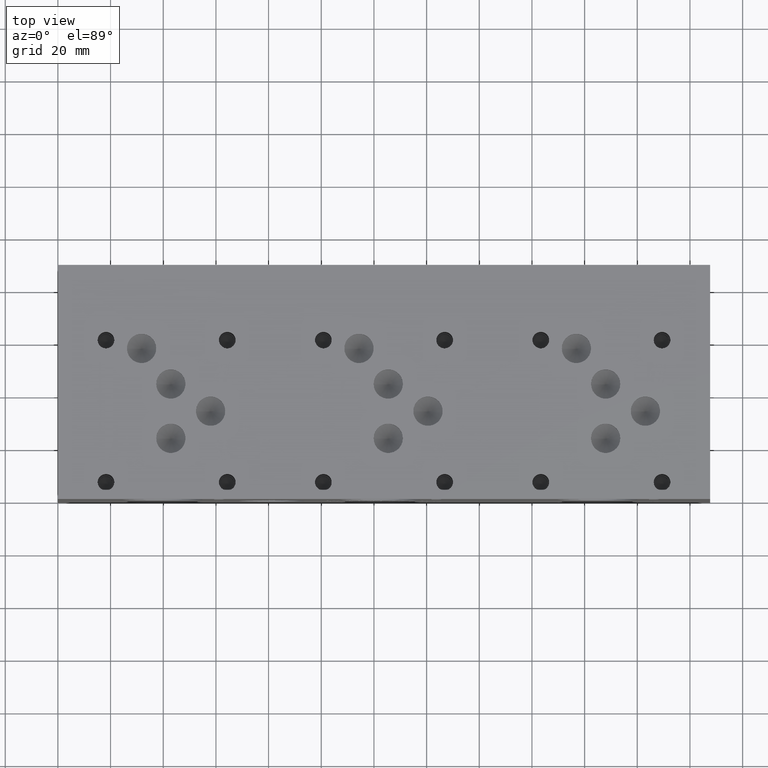
[diagram: clean part render]
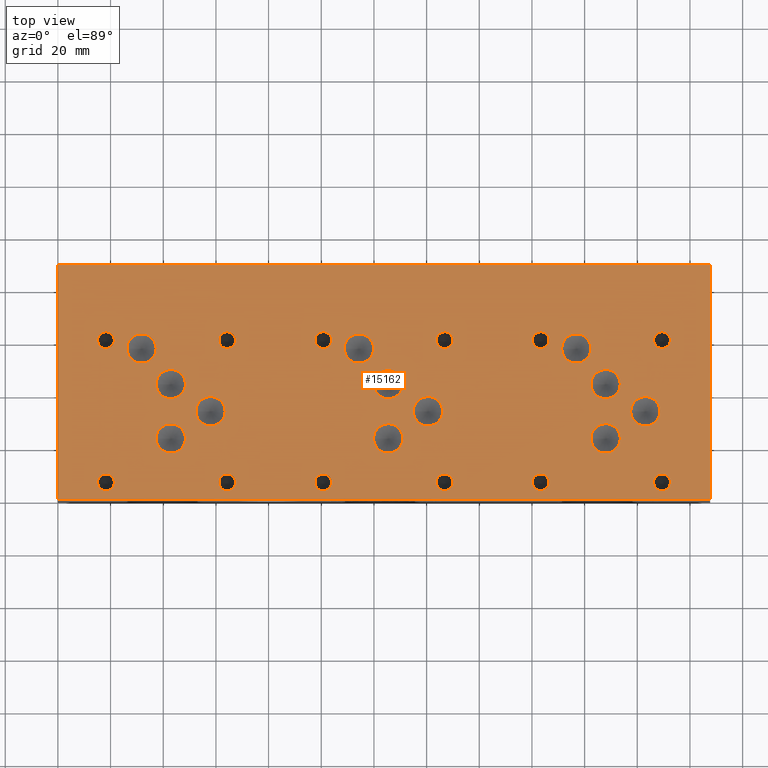
[diagram: same view with one face highlighted and labeled with its STEP entity id]
A machine part, top view. The second image highlights one B-rep face of the part: STEP entity #15162.
In plain terms, the highlighted planar face has unit normal (0, 0, 1).
Its self-contained STEP definition (entity closure, byte-faithful):
#671=CIRCLE('',#15957,3.175);
#672=CIRCLE('',#15958,3.175);
#678=CIRCLE('',#15968,3.175);
#679=CIRCLE('',#15969,3.175);
#685=CIRCLE('',#15979,3.175);
#686=CIRCLE('',#15980,3.175);
#692=CIRCLE('',#15990,3.175);
#693=CIRCLE('',#15991,3.175);
#699=CIRCLE('',#16001,3.175);
#700=CIRCLE('',#16002,3.175);
#706=CIRCLE('',#16012,3.175);
#707=CIRCLE('',#16013,3.175);
#713=CIRCLE('',#16023,3.175);
#714=CIRCLE('',#16024,3.175);
#720=CIRCLE('',#16034,3.175);
#721=CIRCLE('',#16035,3.175);
#724=CIRCLE('',#16041,5.5626);
#725=CIRCLE('',#16042,5.5626);
#728=CIRCLE('',#16047,5.5626);
#729=CIRCLE('',#16048,5.5626);
#732=CIRCLE('',#16053,5.5626);
#733=CIRCLE('',#16054,5.5626);
#736=CIRCLE('',#16059,5.5626);
#737=CIRCLE('',#16060,5.5626);
#740=CIRCLE('',#16065,5.5626);
#741=CIRCLE('',#16066,5.5626);
#744=CIRCLE('',#16071,5.5626);
#745=CIRCLE('',#16072,5.5626);
#748=CIRCLE('',#16077,5.5626);
#749=CIRCLE('',#16078,5.5626);
#752=CIRCLE('',#16083,5.5626);
#753=CIRCLE('',#16084,5.5626);
#756=CIRCLE('',#16089,5.5626);
#757=CIRCLE('',#16090,5.5626);
#760=CIRCLE('',#16095,5.5626);
#761=CIRCLE('',#16096,5.5626);
#764=CIRCLE('',#16101,5.5626);
#765=CIRCLE('',#16102,5.5626);
#768=CIRCLE('',#16107,5.5626);
#769=CIRCLE('',#16108,5.5626);
#775=CIRCLE('',#16117,3.175);
#776=CIRCLE('',#16118,3.175);
#782=CIRCLE('',#16128,3.175);
#783=CIRCLE('',#16129,3.175);
#789=CIRCLE('',#16139,3.175);
#790=CIRCLE('',#16140,3.175);
#796=CIRCLE('',#16150,3.175);
#797=CIRCLE('',#16151,3.175);
#1311=FACE_BOUND('',#3011,.T.);
#1312=FACE_BOUND('',#3012,.T.);
#1313=FACE_BOUND('',#3013,.T.);
#1314=FACE_BOUND('',#3014,.T.);
#1315=FACE_BOUND('',#3015,.T.);
#1316=FACE_BOUND('',#3016,.T.);
#1317=FACE_BOUND('',#3017,.T.);
#1318=FACE_BOUND('',#3018,.T.);
#1319=FACE_BOUND('',#3019,.T.);
#1320=FACE_BOUND('',#3020,.T.);
#1321=FACE_BOUND('',#3021,.T.);
#1322=FACE_BOUND('',#3022,.T.);
#1323=FACE_BOUND('',#3023,.T.);
#1324=FACE_BOUND('',#3024,.T.);
#1325=FACE_BOUND('',#3025,.T.);
#1326=FACE_BOUND('',#3026,.T.);
#1327=FACE_BOUND('',#3027,.T.);
#1328=FACE_BOUND('',#3028,.T.);
#1329=FACE_BOUND('',#3029,.T.);
#1330=FACE_BOUND('',#3030,.T.);
#1331=FACE_BOUND('',#3031,.T.);
#1332=FACE_BOUND('',#3032,.T.);
#1333=FACE_BOUND('',#3033,.T.);
#1334=FACE_BOUND('',#3034,.T.);
#2118=FACE_OUTER_BOUND('',#3010,.T.);
#3010=EDGE_LOOP('',(#13384,#13385,#13386,#13387));
#3011=EDGE_LOOP('',(#13388,#13389));
#3012=EDGE_LOOP('',(#13390,#13391));
#3013=EDGE_LOOP('',(#13392,#13393));
#3014=EDGE_LOOP('',(#13394,#13395));
#3015=EDGE_LOOP('',(#13396,#13397));
#3016=EDGE_LOOP('',(#13398,#13399));
#3017=EDGE_LOOP('',(#13400,#13401));
#3018=EDGE_LOOP('',(#13402,#13403));
#3019=EDGE_LOOP('',(#13404,#13405));
#3020=EDGE_LOOP('',(#13406,#13407));
#3021=EDGE_LOOP('',(#13408,#13409));
#3022=EDGE_LOOP('',(#13410,#13411));
#3023=EDGE_LOOP('',(#13412,#13413));
#3024=EDGE_LOOP('',(#13414,#13415));
#3025=EDGE_LOOP('',(#13416,#13417));
#3026=EDGE_LOOP('',(#13418,#13419));
#3027=EDGE_LOOP('',(#13420,#13421));
#3028=EDGE_LOOP('',(#13422,#13423));
#3029=EDGE_LOOP('',(#13424,#13425));
#3030=EDGE_LOOP('',(#13426,#13427));
#3031=EDGE_LOOP('',(#13428,#13429));
#3032=EDGE_LOOP('',(#13430,#13431));
#3033=EDGE_LOOP('',(#13432,#13433));
#3034=EDGE_LOOP('',(#13434,#13435));
#3071=LINE('',#19504,#4377);
#3992=LINE('',#24308,#5298);
#4026=LINE('',#24530,#5332);
#4341=LINE('',#26419,#5647);
#4377=VECTOR('',#16222,10.);
#5298=VECTOR('',#17729,10.);
#5332=VECTOR('',#17799,10.);
#5647=VECTOR('',#19420,10.);
#5672=VERTEX_POINT('',#19501);
#5673=VERTEX_POINT('',#19503);
#6543=VERTEX_POINT('',#24306);
#6585=VERTEX_POINT('',#24529);
#6957=VERTEX_POINT('',#26011);
#6958=VERTEX_POINT('',#26012);
#6965=VERTEX_POINT('',#26033);
#6966=VERTEX_POINT('',#26034);
#6973=VERTEX_POINT('',#26055);
#6974=VERTEX_POINT('',#26056);
#6981=VERTEX_POINT('',#26077);
#6982=VERTEX_POINT('',#26078);
#6989=VERTEX_POINT('',#26099);
#6990=VERTEX_POINT('',#26100);
#6997=VERTEX_POINT('',#26121);
#6998=VERTEX_POINT('',#26122);
#7005=VERTEX_POINT('',#26143);
#7006=VERTEX_POINT('',#26144);
#7013=VERTEX_POINT('',#26165);
#7014=VERTEX_POINT('',#26166);
#7018=VERTEX_POINT('',#26180);
#7019=VERTEX_POINT('',#26181);
#7023=VERTEX_POINT('',#26193);
#7024=VERTEX_POINT('',#26194);
#7028=VERTEX_POINT('',#26206);
#7029=VERTEX_POINT('',#26207);
#7033=VERTEX_POINT('',#26219);
#7034=VERTEX_POINT('',#26220);
#7038=VERTEX_POINT('',#26232);
#7039=VERTEX_POINT('',#26233);
#7043=VERTEX_POINT('',#26245);
#7044=VERTEX_POINT('',#26246);
#7048=VERTEX_POINT('',#26258);
#7049=VERTEX_POINT('',#26259);
#7053=VERTEX_POINT('',#26271);
#7054=VERTEX_POINT('',#26272);
#7058=VERTEX_POINT('',#26284);
#7059=VERTEX_POINT('',#26285);
#7063=VERTEX_POINT('',#26297);
#7064=VERTEX_POINT('',#26298);
#7068=VERTEX_POINT('',#26310);
#7069=VERTEX_POINT('',#26311);
#7073=VERTEX_POINT('',#26323);
#7074=VERTEX_POINT('',#26324);
#7081=VERTEX_POINT('',#26343);
#7082=VERTEX_POINT('',#26344);
#7089=VERTEX_POINT('',#26365);
#7090=VERTEX_POINT('',#26366);
#7097=VERTEX_POINT('',#26387);
#7098=VERTEX_POINT('',#26388);
#7105=VERTEX_POINT('',#26409);
#7106=VERTEX_POINT('',#26410);
#7142=EDGE_CURVE('',#5673,#5672,#3071,.T.);
#8423=EDGE_CURVE('',#5672,#6543,#3992,.T.);
#8481=EDGE_CURVE('',#6585,#5673,#4026,.T.);
#9030=EDGE_CURVE('',#6957,#6958,#671,.T.);
#9031=EDGE_CURVE('',#6958,#6957,#672,.T.);
#9040=EDGE_CURVE('',#6965,#6966,#678,.T.);
#9041=EDGE_CURVE('',#6966,#6965,#679,.T.);
#9050=EDGE_CURVE('',#6973,#6974,#685,.T.);
#9051=EDGE_CURVE('',#6974,#6973,#686,.T.);
#9060=EDGE_CURVE('',#6981,#6982,#692,.T.);
#9061=EDGE_CURVE('',#6982,#6981,#693,.T.);
#9070=EDGE_CURVE('',#6989,#6990,#699,.T.);
#9071=EDGE_CURVE('',#6990,#6989,#700,.T.);
#9080=EDGE_CURVE('',#6997,#6998,#706,.T.);
#9081=EDGE_CURVE('',#6998,#6997,#707,.T.);
#9090=EDGE_CURVE('',#7005,#7006,#713,.T.);
#9091=EDGE_CURVE('',#7006,#7005,#714,.T.);
#9100=EDGE_CURVE('',#7013,#7014,#720,.T.);
#9101=EDGE_CURVE('',#7014,#7013,#721,.T.);
#9107=EDGE_CURVE('',#7018,#7019,#724,.T.);
#9108=EDGE_CURVE('',#7019,#7018,#725,.T.);
#9113=EDGE_CURVE('',#7023,#7024,#728,.T.);
#9114=EDGE_CURVE('',#7024,#7023,#729,.T.);
#9119=EDGE_CURVE('',#7028,#7029,#732,.T.);
#9120=EDGE_CURVE('',#7029,#7028,#733,.T.);
#9125=EDGE_CURVE('',#7033,#7034,#736,.T.);
#9126=EDGE_CURVE('',#7034,#7033,#737,.T.);
#9131=EDGE_CURVE('',#7038,#7039,#740,.T.);
#9132=EDGE_CURVE('',#7039,#7038,#741,.T.);
#9137=EDGE_CURVE('',#7043,#7044,#744,.T.);
#9138=EDGE_CURVE('',#7044,#7043,#745,.T.);
#9143=EDGE_CURVE('',#7048,#7049,#748,.T.);
#9144=EDGE_CURVE('',#7049,#7048,#749,.T.);
#9149=EDGE_CURVE('',#7053,#7054,#752,.T.);
#9150=EDGE_CURVE('',#7054,#7053,#753,.T.);
#9155=EDGE_CURVE('',#7058,#7059,#756,.T.);
#9156=EDGE_CURVE('',#7059,#7058,#757,.T.);
#9161=EDGE_CURVE('',#7063,#7064,#760,.T.);
#9162=EDGE_CURVE('',#7064,#7063,#761,.T.);
#9167=EDGE_CURVE('',#7068,#7069,#764,.T.);
#9168=EDGE_CURVE('',#7069,#7068,#765,.T.);
#9173=EDGE_CURVE('',#7073,#7074,#768,.T.);
#9174=EDGE_CURVE('',#7074,#7073,#769,.T.);
#9182=EDGE_CURVE('',#7081,#7082,#775,.T.);
#9183=EDGE_CURVE('',#7082,#7081,#776,.T.);
#9192=EDGE_CURVE('',#7089,#7090,#782,.T.);
#9193=EDGE_CURVE('',#7090,#7089,#783,.T.);
#9202=EDGE_CURVE('',#7097,#7098,#789,.T.);
#9203=EDGE_CURVE('',#7098,#7097,#790,.T.);
#9212=EDGE_CURVE('',#7105,#7106,#796,.T.);
#9213=EDGE_CURVE('',#7106,#7105,#797,.T.);
#9217=EDGE_CURVE('',#6543,#6585,#4341,.T.);
#13384=ORIENTED_EDGE('',*,*,#7142,.T.);
#13385=ORIENTED_EDGE('',*,*,#8423,.T.);
#13386=ORIENTED_EDGE('',*,*,#9217,.T.);
#13387=ORIENTED_EDGE('',*,*,#8481,.T.);
#13388=ORIENTED_EDGE('',*,*,#9030,.T.);
#13389=ORIENTED_EDGE('',*,*,#9031,.T.);
#13390=ORIENTED_EDGE('',*,*,#9040,.T.);
#13391=ORIENTED_EDGE('',*,*,#9041,.T.);
#13392=ORIENTED_EDGE('',*,*,#9050,.T.);
#13393=ORIENTED_EDGE('',*,*,#9051,.T.);
#13394=ORIENTED_EDGE('',*,*,#9060,.T.);
#13395=ORIENTED_EDGE('',*,*,#9061,.T.);
#13396=ORIENTED_EDGE('',*,*,#9070,.T.);
#13397=ORIENTED_EDGE('',*,*,#9071,.T.);
#13398=ORIENTED_EDGE('',*,*,#9080,.T.);
#13399=ORIENTED_EDGE('',*,*,#9081,.T.);
#13400=ORIENTED_EDGE('',*,*,#9090,.T.);
#13401=ORIENTED_EDGE('',*,*,#9091,.T.);
#13402=ORIENTED_EDGE('',*,*,#9100,.T.);
#13403=ORIENTED_EDGE('',*,*,#9101,.T.);
#13404=ORIENTED_EDGE('',*,*,#9107,.T.);
#13405=ORIENTED_EDGE('',*,*,#9108,.T.);
#13406=ORIENTED_EDGE('',*,*,#9113,.T.);
#13407=ORIENTED_EDGE('',*,*,#9114,.T.);
#13408=ORIENTED_EDGE('',*,*,#9119,.T.);
#13409=ORIENTED_EDGE('',*,*,#9120,.T.);
#13410=ORIENTED_EDGE('',*,*,#9125,.T.);
#13411=ORIENTED_EDGE('',*,*,#9126,.T.);
#13412=ORIENTED_EDGE('',*,*,#9131,.T.);
#13413=ORIENTED_EDGE('',*,*,#9132,.T.);
#13414=ORIENTED_EDGE('',*,*,#9137,.T.);
#13415=ORIENTED_EDGE('',*,*,#9138,.T.);
#13416=ORIENTED_EDGE('',*,*,#9143,.T.);
#13417=ORIENTED_EDGE('',*,*,#9144,.T.);
#13418=ORIENTED_EDGE('',*,*,#9149,.T.);
#13419=ORIENTED_EDGE('',*,*,#9150,.T.);
#13420=ORIENTED_EDGE('',*,*,#9155,.T.);
#13421=ORIENTED_EDGE('',*,*,#9156,.T.);
#13422=ORIENTED_EDGE('',*,*,#9161,.T.);
#13423=ORIENTED_EDGE('',*,*,#9162,.T.);
#13424=ORIENTED_EDGE('',*,*,#9167,.T.);
#13425=ORIENTED_EDGE('',*,*,#9168,.T.);
#13426=ORIENTED_EDGE('',*,*,#9173,.T.);
#13427=ORIENTED_EDGE('',*,*,#9174,.T.);
#13428=ORIENTED_EDGE('',*,*,#9182,.T.);
#13429=ORIENTED_EDGE('',*,*,#9183,.T.);
#13430=ORIENTED_EDGE('',*,*,#9192,.T.);
#13431=ORIENTED_EDGE('',*,*,#9193,.T.);
#13432=ORIENTED_EDGE('',*,*,#9202,.T.);
#13433=ORIENTED_EDGE('',*,*,#9203,.T.);
#13434=ORIENTED_EDGE('',*,*,#9212,.T.);
#13435=ORIENTED_EDGE('',*,*,#9213,.T.);
#13838=PLANE('',#16157);
#15162=ADVANCED_FACE('',(#2118,#1311,#1312,#1313,#1314,#1315,#1316,#1317,
#1318,#1319,#1320,#1321,#1322,#1323,#1324,#1325,#1326,#1327,#1328,#1329,
#1330,#1331,#1332,#1333,#1334),#13838,.T.);
#15957=AXIS2_PLACEMENT_3D('',#26013,#18964,#18965);
#15958=AXIS2_PLACEMENT_3D('',#26014,#18966,#18967);
#15968=AXIS2_PLACEMENT_3D('',#26035,#18989,#18990);
#15969=AXIS2_PLACEMENT_3D('',#26036,#18991,#18992);
#15979=AXIS2_PLACEMENT_3D('',#26057,#19014,#19015);
#15980=AXIS2_PLACEMENT_3D('',#26058,#19016,#19017);
#15990=AXIS2_PLACEMENT_3D('',#26079,#19039,#19040);
#15991=AXIS2_PLACEMENT_3D('',#26080,#19041,#19042);
#16001=AXIS2_PLACEMENT_3D('',#26101,#19064,#19065);
#16002=AXIS2_PLACEMENT_3D('',#26102,#19066,#19067);
#16012=AXIS2_PLACEMENT_3D('',#26123,#19089,#19090);
#16013=AXIS2_PLACEMENT_3D('',#26124,#19091,#19092);
#16023=AXIS2_PLACEMENT_3D('',#26145,#19114,#19115);
#16024=AXIS2_PLACEMENT_3D('',#26146,#19116,#19117);
#16034=AXIS2_PLACEMENT_3D('',#26167,#19139,#19140);
#16035=AXIS2_PLACEMENT_3D('',#26168,#19141,#19142);
#16041=AXIS2_PLACEMENT_3D('',#26182,#19156,#19157);
#16042=AXIS2_PLACEMENT_3D('',#26183,#19158,#19159);
#16047=AXIS2_PLACEMENT_3D('',#26195,#19170,#19171);
#16048=AXIS2_PLACEMENT_3D('',#26196,#19172,#19173);
#16053=AXIS2_PLACEMENT_3D('',#26208,#19184,#19185);
#16054=AXIS2_PLACEMENT_3D('',#26209,#19186,#19187);
#16059=AXIS2_PLACEMENT_3D('',#26221,#19198,#19199);
#16060=AXIS2_PLACEMENT_3D('',#26222,#19200,#19201);
#16065=AXIS2_PLACEMENT_3D('',#26234,#19212,#19213);
#16066=AXIS2_PLACEMENT_3D('',#26235,#19214,#19215);
#16071=AXIS2_PLACEMENT_3D('',#26247,#19226,#19227);
#16072=AXIS2_PLACEMENT_3D('',#26248,#19228,#19229);
#16077=AXIS2_PLACEMENT_3D('',#26260,#19240,#19241);
#16078=AXIS2_PLACEMENT_3D('',#26261,#19242,#19243);
#16083=AXIS2_PLACEMENT_3D('',#26273,#19254,#19255);
#16084=AXIS2_PLACEMENT_3D('',#26274,#19256,#19257);
#16089=AXIS2_PLACEMENT_3D('',#26286,#19268,#19269);
#16090=AXIS2_PLACEMENT_3D('',#26287,#19270,#19271);
#16095=AXIS2_PLACEMENT_3D('',#26299,#19282,#19283);
#16096=AXIS2_PLACEMENT_3D('',#26300,#19284,#19285);
#16101=AXIS2_PLACEMENT_3D('',#26312,#19296,#19297);
#16102=AXIS2_PLACEMENT_3D('',#26313,#19298,#19299);
#16107=AXIS2_PLACEMENT_3D('',#26325,#19310,#19311);
#16108=AXIS2_PLACEMENT_3D('',#26326,#19312,#19313);
#16117=AXIS2_PLACEMENT_3D('',#26345,#19332,#19333);
#16118=AXIS2_PLACEMENT_3D('',#26346,#19334,#19335);
#16128=AXIS2_PLACEMENT_3D('',#26367,#19357,#19358);
#16129=AXIS2_PLACEMENT_3D('',#26368,#19359,#19360);
#16139=AXIS2_PLACEMENT_3D('',#26389,#19382,#19383);
#16140=AXIS2_PLACEMENT_3D('',#26390,#19384,#19385);
#16150=AXIS2_PLACEMENT_3D('',#26411,#19407,#19408);
#16151=AXIS2_PLACEMENT_3D('',#26412,#19409,#19410);
#16157=AXIS2_PLACEMENT_3D('',#26422,#19425,#19426);
#16222=DIRECTION('',(1.,0.,0.));
#17729=DIRECTION('',(0.,1.,0.));
#17799=DIRECTION('',(0.,-1.,0.));
#18964=DIRECTION('center_axis',(0.,0.,-1.));
#18965=DIRECTION('ref_axis',(1.,0.,0.));
#18966=DIRECTION('center_axis',(0.,0.,-1.));
#18967=DIRECTION('ref_axis',(1.,0.,0.));
#18989=DIRECTION('center_axis',(0.,0.,-1.));
#18990=DIRECTION('ref_axis',(1.,0.,0.));
#18991=DIRECTION('center_axis',(0.,0.,-1.));
#18992=DIRECTION('ref_axis',(1.,0.,0.));
#19014=DIRECTION('center_axis',(0.,0.,-1.));
#19015=DIRECTION('ref_axis',(1.,0.,0.));
#19016=DIRECTION('center_axis',(0.,0.,-1.));
#19017=DIRECTION('ref_axis',(1.,0.,0.));
#19039=DIRECTION('center_axis',(0.,0.,-1.));
#19040=DIRECTION('ref_axis',(1.,0.,0.));
#19041=DIRECTION('center_axis',(0.,0.,-1.));
#19042=DIRECTION('ref_axis',(1.,0.,0.));
#19064=DIRECTION('center_axis',(0.,0.,-1.));
#19065=DIRECTION('ref_axis',(1.,0.,0.));
#19066=DIRECTION('center_axis',(0.,0.,-1.));
#19067=DIRECTION('ref_axis',(1.,0.,0.));
#19089=DIRECTION('center_axis',(0.,0.,-1.));
#19090=DIRECTION('ref_axis',(1.,0.,0.));
#19091=DIRECTION('center_axis',(0.,0.,-1.));
#19092=DIRECTION('ref_axis',(1.,0.,0.));
#19114=DIRECTION('center_axis',(0.,0.,-1.));
#19115=DIRECTION('ref_axis',(1.,0.,0.));
#19116=DIRECTION('center_axis',(0.,0.,-1.));
#19117=DIRECTION('ref_axis',(1.,0.,0.));
#19139=DIRECTION('center_axis',(0.,0.,-1.));
#19140=DIRECTION('ref_axis',(1.,0.,0.));
#19141=DIRECTION('center_axis',(0.,0.,-1.));
#19142=DIRECTION('ref_axis',(1.,0.,0.));
#19156=DIRECTION('center_axis',(0.,0.,-1.));
#19157=DIRECTION('ref_axis',(1.,0.,0.));
#19158=DIRECTION('center_axis',(0.,0.,-1.));
#19159=DIRECTION('ref_axis',(1.,0.,0.));
#19170=DIRECTION('center_axis',(0.,0.,-1.));
#19171=DIRECTION('ref_axis',(1.,0.,0.));
#19172=DIRECTION('center_axis',(0.,0.,-1.));
#19173=DIRECTION('ref_axis',(1.,0.,0.));
#19184=DIRECTION('center_axis',(0.,0.,-1.));
#19185=DIRECTION('ref_axis',(1.,0.,0.));
#19186=DIRECTION('center_axis',(0.,0.,-1.));
#19187=DIRECTION('ref_axis',(1.,0.,0.));
#19198=DIRECTION('center_axis',(0.,0.,-1.));
#19199=DIRECTION('ref_axis',(1.,0.,0.));
#19200=DIRECTION('center_axis',(0.,0.,-1.));
#19201=DIRECTION('ref_axis',(1.,0.,0.));
#19212=DIRECTION('center_axis',(0.,0.,-1.));
#19213=DIRECTION('ref_axis',(1.,0.,0.));
#19214=DIRECTION('center_axis',(0.,0.,-1.));
#19215=DIRECTION('ref_axis',(1.,0.,0.));
#19226=DIRECTION('center_axis',(0.,0.,-1.));
#19227=DIRECTION('ref_axis',(1.,0.,0.));
#19228=DIRECTION('center_axis',(0.,0.,-1.));
#19229=DIRECTION('ref_axis',(1.,0.,0.));
#19240=DIRECTION('center_axis',(0.,0.,-1.));
#19241=DIRECTION('ref_axis',(1.,0.,0.));
#19242=DIRECTION('center_axis',(0.,0.,-1.));
#19243=DIRECTION('ref_axis',(1.,0.,0.));
#19254=DIRECTION('center_axis',(0.,0.,-1.));
#19255=DIRECTION('ref_axis',(1.,0.,0.));
#19256=DIRECTION('center_axis',(0.,0.,-1.));
#19257=DIRECTION('ref_axis',(1.,0.,0.));
#19268=DIRECTION('center_axis',(0.,0.,-1.));
#19269=DIRECTION('ref_axis',(1.,0.,0.));
#19270=DIRECTION('center_axis',(0.,0.,-1.));
#19271=DIRECTION('ref_axis',(1.,0.,0.));
#19282=DIRECTION('center_axis',(0.,0.,-1.));
#19283=DIRECTION('ref_axis',(1.,0.,0.));
#19284=DIRECTION('center_axis',(0.,0.,-1.));
#19285=DIRECTION('ref_axis',(1.,0.,0.));
#19296=DIRECTION('center_axis',(0.,0.,-1.));
#19297=DIRECTION('ref_axis',(1.,0.,0.));
#19298=DIRECTION('center_axis',(0.,0.,-1.));
#19299=DIRECTION('ref_axis',(1.,0.,0.));
#19310=DIRECTION('center_axis',(0.,0.,-1.));
#19311=DIRECTION('ref_axis',(1.,0.,0.));
#19312=DIRECTION('center_axis',(0.,0.,-1.));
#19313=DIRECTION('ref_axis',(1.,0.,0.));
#19332=DIRECTION('center_axis',(0.,0.,-1.));
#19333=DIRECTION('ref_axis',(1.,0.,0.));
#19334=DIRECTION('center_axis',(0.,0.,-1.));
#19335=DIRECTION('ref_axis',(1.,0.,0.));
#19357=DIRECTION('center_axis',(0.,0.,-1.));
#19358=DIRECTION('ref_axis',(1.,0.,0.));
#19359=DIRECTION('center_axis',(0.,0.,-1.));
#19360=DIRECTION('ref_axis',(1.,0.,0.));
#19382=DIRECTION('center_axis',(0.,0.,-1.));
#19383=DIRECTION('ref_axis',(1.,0.,0.));
#19384=DIRECTION('center_axis',(0.,0.,-1.));
#19385=DIRECTION('ref_axis',(1.,0.,0.));
#19407=DIRECTION('center_axis',(0.,0.,-1.));
#19408=DIRECTION('ref_axis',(1.,0.,0.));
#19409=DIRECTION('center_axis',(0.,0.,-1.));
#19410=DIRECTION('ref_axis',(1.,0.,0.));
#19420=DIRECTION('',(-1.,0.,0.));
#19425=DIRECTION('center_axis',(0.,0.,1.));
#19426=DIRECTION('ref_axis',(1.,0.,0.));
#19501=CARTESIAN_POINT('',(247.65,0.,88.9));
#19503=CARTESIAN_POINT('',(0.,0.,88.9));
#19504=CARTESIAN_POINT('',(0.,0.,88.9));
#24306=CARTESIAN_POINT('',(247.65,88.9,88.9));
#24308=CARTESIAN_POINT('',(247.65,0.,88.9));
#24529=CARTESIAN_POINT('',(0.,88.9,88.9));
#24530=CARTESIAN_POINT('',(0.,88.9,88.9));
#26011=CARTESIAN_POINT('',(232.5624,6.35,88.9));
#26012=CARTESIAN_POINT('',(226.2124,6.35,88.9));
#26013=CARTESIAN_POINT('Origin',(229.3874,6.35,88.9));
#26014=CARTESIAN_POINT('Origin',(229.3874,6.35,88.9));
#26033=CARTESIAN_POINT('',(186.5122,60.325,88.9));
#26034=CARTESIAN_POINT('',(180.1622,60.325,88.9));
#26035=CARTESIAN_POINT('Origin',(183.3372,60.325,88.9));
#26036=CARTESIAN_POINT('Origin',(183.3372,60.325,88.9));
#26055=CARTESIAN_POINT('',(150.0124,6.35,88.9));
#26056=CARTESIAN_POINT('',(143.6624,6.35,88.9));
#26057=CARTESIAN_POINT('Origin',(146.8374,6.35,88.9));
#26058=CARTESIAN_POINT('Origin',(146.8374,6.35,88.9));
#26077=CARTESIAN_POINT('',(103.9622,60.325,88.9));
#26078=CARTESIAN_POINT('',(97.6122,60.325,88.9));
#26079=CARTESIAN_POINT('Origin',(100.7872,60.325,88.9));
#26080=CARTESIAN_POINT('Origin',(100.7872,60.325,88.9));
#26099=CARTESIAN_POINT('',(150.0124,60.325,88.9));
#26100=CARTESIAN_POINT('',(143.6624,60.325,88.9));
#26101=CARTESIAN_POINT('Origin',(146.8374,60.325,88.9));
#26102=CARTESIAN_POINT('Origin',(146.8374,60.325,88.9));
#26121=CARTESIAN_POINT('',(103.9622,6.35,88.9));
#26122=CARTESIAN_POINT('',(97.6122,6.35,88.9));
#26123=CARTESIAN_POINT('Origin',(100.7872,6.35,88.9));
#26124=CARTESIAN_POINT('Origin',(100.7872,6.35,88.9));
#26143=CARTESIAN_POINT('',(232.5624,60.325,88.9));
#26144=CARTESIAN_POINT('',(226.2124,60.325,88.9));
#26145=CARTESIAN_POINT('Origin',(229.3874,60.325,88.9));
#26146=CARTESIAN_POINT('Origin',(229.3874,60.325,88.9));
#26165=CARTESIAN_POINT('',(186.5122,6.35,88.9));
#26166=CARTESIAN_POINT('',(180.1622,6.35,88.9));
#26167=CARTESIAN_POINT('Origin',(183.3372,6.35,88.9));
#26168=CARTESIAN_POINT('Origin',(183.3372,6.35,88.9));
#26180=CARTESIAN_POINT('',(213.5378,43.6372,88.9));
#26181=CARTESIAN_POINT('',(202.4126,43.6372,88.9));
#26182=CARTESIAN_POINT('Origin',(207.9752,43.6372,88.9));
#26183=CARTESIAN_POINT('Origin',(207.9752,43.6372,88.9));
#26193=CARTESIAN_POINT('',(228.6254,33.3248,88.9));
#26194=CARTESIAN_POINT('',(217.5002,33.3248,88.9));
#26195=CARTESIAN_POINT('Origin',(223.0628,33.3248,88.9));
#26196=CARTESIAN_POINT('Origin',(223.0628,33.3248,88.9));
#26206=CARTESIAN_POINT('',(130.9878,43.6372,88.9));
#26207=CARTESIAN_POINT('',(119.8626,43.6372,88.9));
#26208=CARTESIAN_POINT('Origin',(125.4252,43.6372,88.9));
#26209=CARTESIAN_POINT('Origin',(125.4252,43.6372,88.9));
#26219=CARTESIAN_POINT('',(146.0754,33.3248,88.9));
#26220=CARTESIAN_POINT('',(134.9502,33.3248,88.9));
#26221=CARTESIAN_POINT('Origin',(140.5128,33.3248,88.9));
#26222=CARTESIAN_POINT('Origin',(140.5128,33.3248,88.9));
#26232=CARTESIAN_POINT('',(48.4251,43.64228,88.9));
#26233=CARTESIAN_POINT('',(37.2999,43.64228,88.9));
#26234=CARTESIAN_POINT('Origin',(42.8625,43.64228,88.9));
#26235=CARTESIAN_POINT('Origin',(42.8625,43.64228,88.9));
#26245=CARTESIAN_POINT('',(63.5254,33.3248,88.9));
#26246=CARTESIAN_POINT('',(52.4002,33.3248,88.9));
#26247=CARTESIAN_POINT('Origin',(57.9628,33.3248,88.9));
#26248=CARTESIAN_POINT('Origin',(57.9628,33.3248,88.9));
#26258=CARTESIAN_POINT('',(37.3126,57.15,88.9));
#26259=CARTESIAN_POINT('',(26.1874,57.15,88.9));
#26260=CARTESIAN_POINT('Origin',(31.75,57.15,88.9));
#26261=CARTESIAN_POINT('Origin',(31.75,57.15,88.9));
#26271=CARTESIAN_POINT('',(48.43018,23.00732,88.9));
#26272=CARTESIAN_POINT('',(37.30498,23.00732,88.9));
#26273=CARTESIAN_POINT('Origin',(42.86758,23.00732,88.9));
#26274=CARTESIAN_POINT('Origin',(42.86758,23.00732,88.9));
#26284=CARTESIAN_POINT('',(119.8626,57.15,88.9));
#26285=CARTESIAN_POINT('',(108.7374,57.15,88.9));
#26286=CARTESIAN_POINT('Origin',(114.3,57.15,88.9));
#26287=CARTESIAN_POINT('Origin',(114.3,57.15,88.9));
#26297=CARTESIAN_POINT('',(130.9878,23.0124,88.9));
#26298=CARTESIAN_POINT('',(119.8626,23.0124,88.9));
#26299=CARTESIAN_POINT('Origin',(125.4252,23.0124,88.9));
#26300=CARTESIAN_POINT('Origin',(125.4252,23.0124,88.9));
#26310=CARTESIAN_POINT('',(202.4126,57.15,88.9));
#26311=CARTESIAN_POINT('',(191.2874,57.15,88.9));
#26312=CARTESIAN_POINT('Origin',(196.85,57.15,88.9));
#26313=CARTESIAN_POINT('Origin',(196.85,57.15,88.9));
#26323=CARTESIAN_POINT('',(213.5378,23.0124,88.9));
#26324=CARTESIAN_POINT('',(202.4126,23.0124,88.9));
#26325=CARTESIAN_POINT('Origin',(207.9752,23.0124,88.9));
#26326=CARTESIAN_POINT('Origin',(207.9752,23.0124,88.9));
#26343=CARTESIAN_POINT('',(67.4624,6.3627,88.9));
#26344=CARTESIAN_POINT('',(61.1124,6.3627,88.9));
#26345=CARTESIAN_POINT('Origin',(64.2874,6.3627,88.9));
#26346=CARTESIAN_POINT('Origin',(64.2874,6.3627,88.9));
#26365=CARTESIAN_POINT('',(21.4122,60.325,88.9));
#26366=CARTESIAN_POINT('',(15.0622,60.325,88.9));
#26367=CARTESIAN_POINT('Origin',(18.2372,60.325,88.9));
#26368=CARTESIAN_POINT('Origin',(18.2372,60.325,88.9));
#26387=CARTESIAN_POINT('',(67.4624,60.325,88.9));
#26388=CARTESIAN_POINT('',(61.1124,60.325,88.9));
#26389=CARTESIAN_POINT('Origin',(64.2874,60.325,88.9));
#26390=CARTESIAN_POINT('Origin',(64.2874,60.325,88.9));
#26409=CARTESIAN_POINT('',(21.4122,6.35,88.9));
#26410=CARTESIAN_POINT('',(15.0622,6.35,88.9));
#26411=CARTESIAN_POINT('Origin',(18.2372,6.35,88.9));
#26412=CARTESIAN_POINT('Origin',(18.2372,6.35,88.9));
#26419=CARTESIAN_POINT('',(247.65,88.9,88.9));
#26422=CARTESIAN_POINT('Origin',(123.825,44.45,88.9));